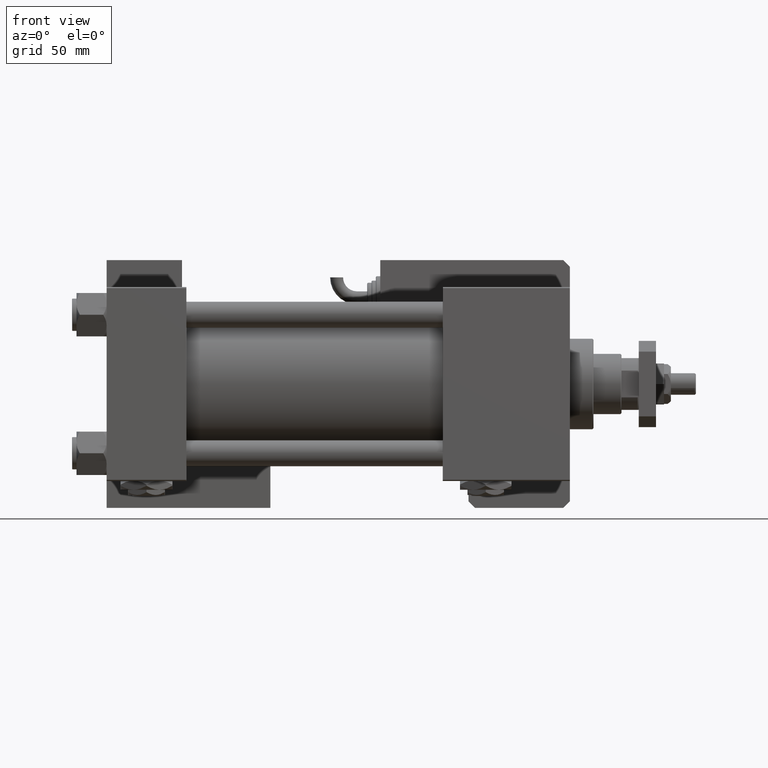
[diagram: clean part render]
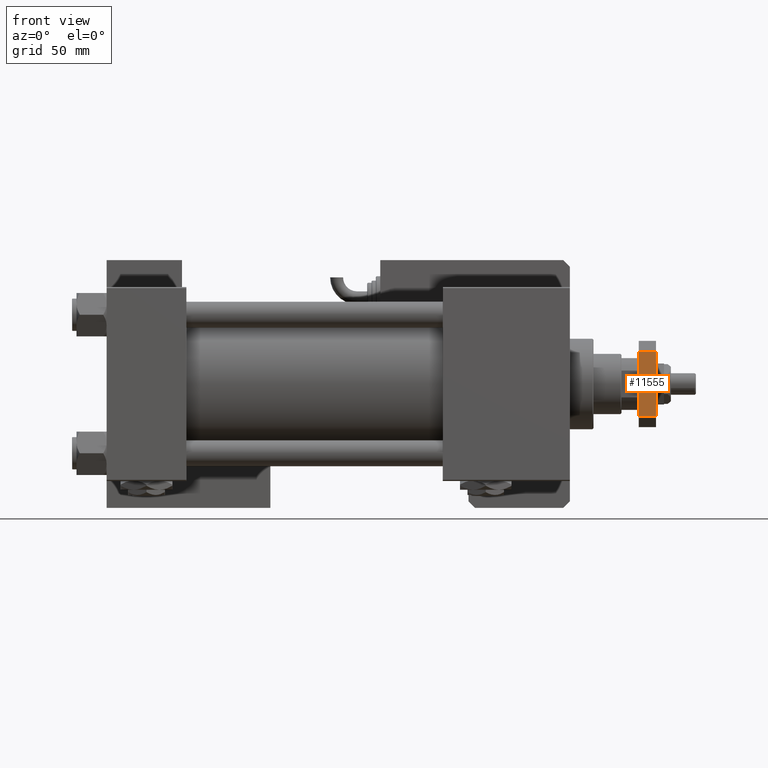
[diagram: same view with one face highlighted and labeled with its STEP entity id]
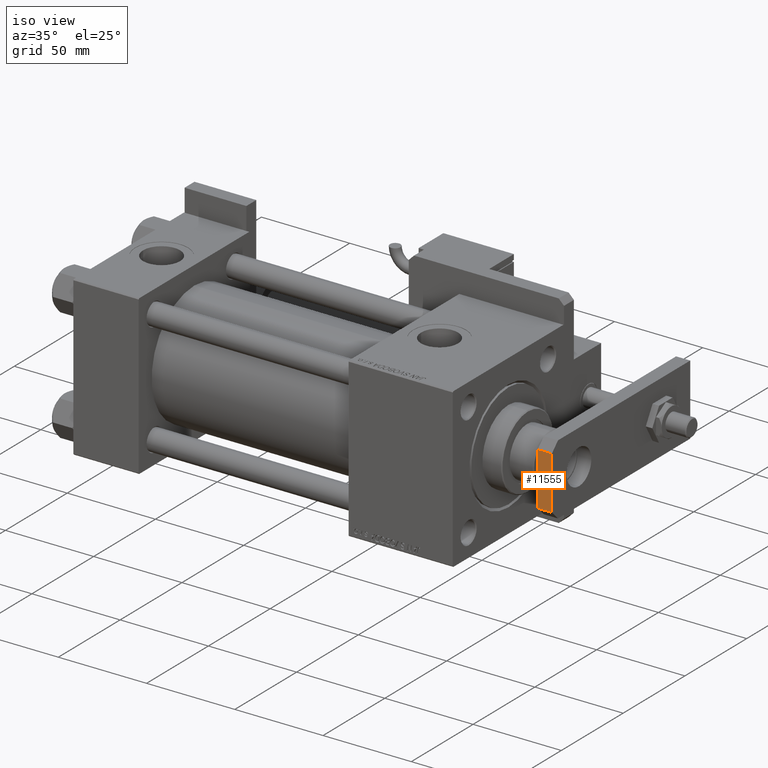
[diagram: same view with one face highlighted and labeled with its STEP entity id]
A machine part, front view. The second image highlights one B-rep face of the part: STEP entity #11555.
A second angle (iso view) of the same face is appended — the face is thin or edge-on in the first view.
In plain terms, the highlighted planar face has unit normal (0, 1, 0).
Its self-contained STEP definition (entity closure, byte-faithful):
#402 = CARTESIAN_POINT ( 'NONE',  ( 15.00000000000001066, 0.000000000000000000, 8.000000000000000000 ) ) ;
#1941 = CARTESIAN_POINT ( 'NONE',  ( -20.00000000000001421, 0.000000000000000000, 0.000000000000000000 ) ) ;
#3443 = EDGE_CURVE ( 'NONE', #45649, #12570, #22290, .T. ) ;
#3479 = AXIS2_PLACEMENT_3D ( 'NONE', #57439, #35147, #4618 ) ;
#3748 = PLANE ( 'NONE',  #3479 ) ;
#4618 = DIRECTION ( 'NONE',  ( 0.000000000000000000, -0.000000000000000000, 1.000000000000000000 ) ) ;
#5815 = EDGE_CURVE ( 'NONE', #45649, #10619, #6517, .T. ) ;
#6517 = LINE ( 'NONE', #15599, #50237 ) ;
#8737 = FACE_OUTER_BOUND ( 'NONE', #26932, .T. ) ;
#10546 = DIRECTION ( 'NONE',  ( 0.000000000000000000, 0.000000000000000000, 1.000000000000000000 ) ) ;
#10619 = VERTEX_POINT ( 'NONE', #54688 ) ;
#11031 = DIRECTION ( 'NONE',  ( 1.000000000000000000, 0.000000000000000000, 0.000000000000000000 ) ) ;
#11555 = ADVANCED_FACE ( 'NONE', ( #8737 ), #3748, .F. ) ;
#12570 = VERTEX_POINT ( 'NONE', #402 ) ;
#15599 = CARTESIAN_POINT ( 'NONE',  ( -15.00000000000001066, 0.000000000000000000, 8.000000000000000000 ) ) ;
#16469 = DIRECTION ( 'NONE',  ( 0.000000000000000000, 0.000000000000000000, -1.000000000000000000 ) ) ;
#19168 = CARTESIAN_POINT ( 'NONE',  ( -15.00000000000001066, 0.000000000000000000, 8.000000000000000000 ) ) ;
#22290 = LINE ( 'NONE', #39929, #38905 ) ;
#22597 = EDGE_CURVE ( 'NONE', #54494, #12570, #50748, .T. ) ;
#22605 = ORIENTED_EDGE ( 'NONE', *, *, #5815, .T. ) ;
#26932 = EDGE_LOOP ( 'NONE', ( #56518, #22605, #39661, #35698 ) ) ;
#27011 = VECTOR ( 'NONE', #11031, 1000.000000000000000 ) ;
#33042 = LINE ( 'NONE', #1941, #27011 ) ;
#35147 = DIRECTION ( 'NONE',  ( 0.000000000000000000, 1.000000000000000000, 0.000000000000000000 ) ) ;
#35698 = ORIENTED_EDGE ( 'NONE', *, *, #22597, .T. ) ;
#35706 = VECTOR ( 'NONE', #10546, 1000.000000000000000 ) ;
#38905 = VECTOR ( 'NONE', #48992, 1000.000000000000000 ) ;
#39661 = ORIENTED_EDGE ( 'NONE', *, *, #52098, .T. ) ;
#39929 = CARTESIAN_POINT ( 'NONE',  ( -20.00000000000001421, 0.000000000000000000, 8.000000000000000000 ) ) ;
#40790 = CARTESIAN_POINT ( 'NONE',  ( 15.00000000000001066, 0.000000000000000000, 8.000000000000000000 ) ) ;
#41886 = CARTESIAN_POINT ( 'NONE',  ( 15.00000000000001066, 0.000000000000000000, 0.000000000000000000 ) ) ;
#45649 = VERTEX_POINT ( 'NONE', #19168 ) ;
#48992 = DIRECTION ( 'NONE',  ( 1.000000000000000000, 0.000000000000000000, 0.000000000000000000 ) ) ;
#50237 = VECTOR ( 'NONE', #16469, 1000.000000000000000 ) ;
#50748 = LINE ( 'NONE', #40790, #35706 ) ;
#52098 = EDGE_CURVE ( 'NONE', #10619, #54494, #33042, .T. ) ;
#54494 = VERTEX_POINT ( 'NONE', #41886 ) ;
#54688 = CARTESIAN_POINT ( 'NONE',  ( -15.00000000000001066, 0.000000000000000000, 0.000000000000000000 ) ) ;
#56518 = ORIENTED_EDGE ( 'NONE', *, *, #3443, .F. ) ;
#57439 = CARTESIAN_POINT ( 'NONE',  ( -20.00000000000001421, 0.000000000000000000, 8.000000000000000000 ) ) ;